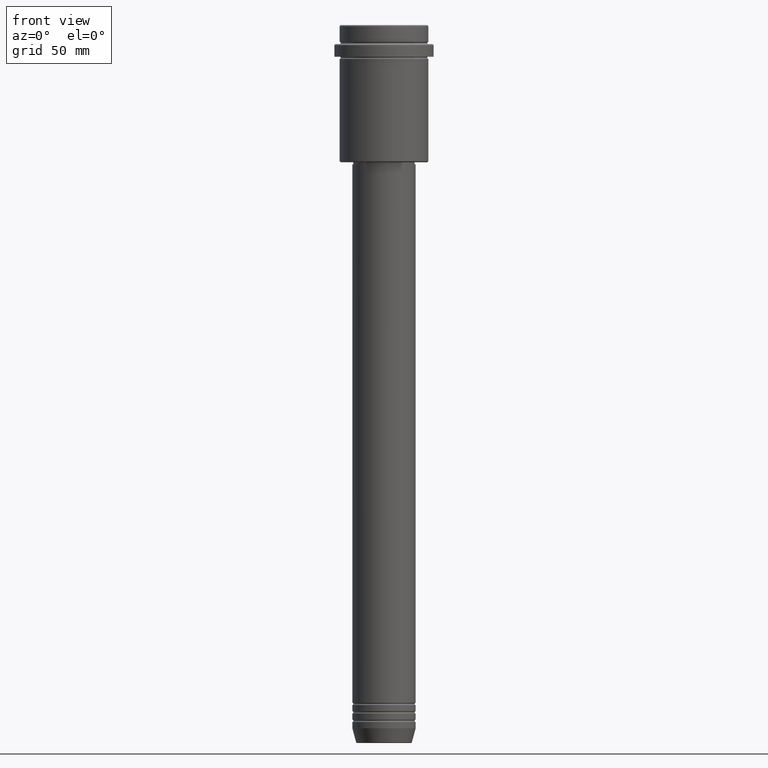
[diagram: clean part render]
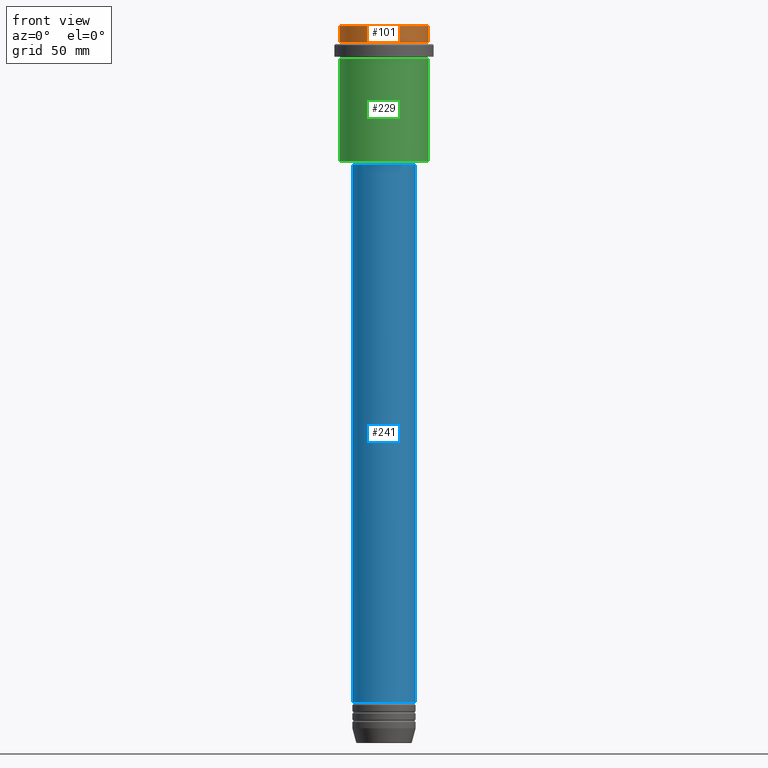
[diagram: same view with three faces highlighted in distinct colors, each labeled with its STEP entity id]
A machine part, front view with three faces highlighted in distinct colors.
Their STEP definitions:

[orange] entity #101 — the highlighted cylindrical surface (partial cylindrical patch) has radius 21 mm, axis along (-0, -0, 1).
#21 = EDGE_CURVE ( 'NONE', #23, #1118, #616, .T. ) ;
#23 = VERTEX_POINT ( 'NONE', #878 ) ;
#24 = AXIS2_PLACEMENT_3D ( 'NONE', #521, #309, #530 ) ;
#65 = LINE ( 'NONE', #492, #1375 ) ;
#84 = VERTEX_POINT ( 'NONE', #676 ) ;
#101 = ADVANCED_FACE ( 'NONE', ( #445 ), #1357, .T. ) ;
#118 = DIRECTION ( 'NONE',  ( -0.000000000000000000, -0.000000000000000000, 1.000000000000000000 ) ) ;
#144 = CARTESIAN_POINT ( 'NONE',  ( 20.99999999999999645, 0.000000000000000000, 0.000000000000000000 ) ) ;
#146 = EDGE_LOOP ( 'NONE', ( #1092, #606, #298, #656 ) ) ;
#200 = CIRCLE ( 'NONE', #1232, 20.99999999999999645 ) ;
#239 = AXIS2_PLACEMENT_3D ( 'NONE', #243, #118, #1128 ) ;
#243 = CARTESIAN_POINT ( 'NONE',  ( 0.000000000000000000, 0.000000000000000000, 0.000000000000000000 ) ) ;
#277 = CARTESIAN_POINT ( 'NONE',  ( 20.99999999999999645, 0.000000000000000000, -7.999999999999998224 ) ) ;
#298 = ORIENTED_EDGE ( 'NONE', *, *, #1071, .T. ) ;
#309 = DIRECTION ( 'NONE',  ( 0.000000000000000000, 0.000000000000000000, -1.000000000000000000 ) ) ;
#384 = EDGE_CURVE ( 'NONE', #84, #1118, #65, .T. ) ;
#406 = DIRECTION ( 'NONE',  ( -0.000000000000000000, -0.000000000000000000, 1.000000000000000000 ) ) ;
#445 = FACE_OUTER_BOUND ( 'NONE', #146, .T. ) ;
#465 = EDGE_CURVE ( 'NONE', #84, #652, #200, .T. ) ;
#492 = CARTESIAN_POINT ( 'NONE',  ( -20.99999999999999645, 2.571758278209441267E-15, 0.000000000000000000 ) ) ;
#521 = CARTESIAN_POINT ( 'NONE',  ( 0.000000000000000000, 0.000000000000000000, -0.5000000000000628386 ) ) ;
#530 = DIRECTION ( 'NONE',  ( 1.000000000000000000, 0.000000000000000000, 0.000000000000000000 ) ) ;
#606 = ORIENTED_EDGE ( 'NONE', *, *, #465, .T. ) ;
#616 = CIRCLE ( 'NONE', #24, 20.99999999999999645 ) ;
#652 = VERTEX_POINT ( 'NONE', #277 ) ;
#656 = ORIENTED_EDGE ( 'NONE', *, *, #21, .T. ) ;
#676 = CARTESIAN_POINT ( 'NONE',  ( -20.99999999999999645, 2.571758278209441267E-15, -7.999999999999998224 ) ) ;
#725 = LINE ( 'NONE', #144, #1333 ) ;
#837 = DIRECTION ( 'NONE',  ( 1.000000000000000000, 0.000000000000000000, 0.000000000000000000 ) ) ;
#861 = CARTESIAN_POINT ( 'NONE',  ( -20.99999999999999645, 2.571758278209441267E-15, -0.5000000000000628386 ) ) ;
#878 = CARTESIAN_POINT ( 'NONE',  ( 20.99999999999999645, 0.000000000000000000, -0.5000000000000628386 ) ) ;
#1045 = DIRECTION ( 'NONE',  ( -0.000000000000000000, -0.000000000000000000, 1.000000000000000000 ) ) ;
#1071 = EDGE_CURVE ( 'NONE', #652, #23, #725, .T. ) ;
#1092 = ORIENTED_EDGE ( 'NONE', *, *, #384, .F. ) ;
#1118 = VERTEX_POINT ( 'NONE', #861 ) ;
#1128 = DIRECTION ( 'NONE',  ( 1.000000000000000000, 0.000000000000000000, 0.000000000000000000 ) ) ;
#1156 = DIRECTION ( 'NONE',  ( -0.000000000000000000, -0.000000000000000000, 1.000000000000000000 ) ) ;
#1232 = AXIS2_PLACEMENT_3D ( 'NONE', #1396, #406, #837 ) ;
#1333 = VECTOR ( 'NONE', #1045, 1000.000000000000000 ) ;
#1357 = CYLINDRICAL_SURFACE ( 'NONE', #239, 20.99999999999999645 ) ;
#1375 = VECTOR ( 'NONE', #1156, 1000.000000000000000 ) ;
#1396 = CARTESIAN_POINT ( 'NONE',  ( 0.000000000000000000, 0.000000000000000000, -7.999999999999998224 ) ) ;

[blue] entity #241 — the highlighted cylindrical surface (edge-blend (fillet) strip) has radius 15 mm, axis along (-0, -0, 1).
#91 = DIRECTION ( 'NONE',  ( -0.000000000000000000, -0.000000000000000000, 1.000000000000000000 ) ) ;
#110 = CIRCLE ( 'NONE', #681, 15.00000000000000000 ) ;
#121 = EDGE_CURVE ( 'NONE', #1095, #216, #110, .T. ) ;
#130 = DIRECTION ( 'NONE',  ( -0.000000000000000000, -0.000000000000000000, 1.000000000000000000 ) ) ;
#165 = CARTESIAN_POINT ( 'NONE',  ( 0.000000000000000000, 0.000000000000000000, 0.000000000000000000 ) ) ;
#210 = DIRECTION ( 'NONE',  ( -0.000000000000000000, -0.000000000000000000, 1.000000000000000000 ) ) ;
#216 = VERTEX_POINT ( 'NONE', #1018 ) ;
#241 = ADVANCED_FACE ( 'NONE', ( #1027 ), #921, .T. ) ;
#249 = CIRCLE ( 'NONE', #986, 15.00000000000000000 ) ;
#303 = LINE ( 'NONE', #1088, #916 ) ;
#486 = DIRECTION ( 'NONE',  ( 1.000000000000000000, 0.000000000000000000, 0.000000000000000000 ) ) ;
#496 = CARTESIAN_POINT ( 'NONE',  ( 15.00000000000000000, 0.000000000000000000, -65.99999999999991473 ) ) ;
#523 = AXIS2_PLACEMENT_3D ( 'NONE', #165, #597, #486 ) ;
#524 = VECTOR ( 'NONE', #709, 1000.000000000000000 ) ;
#540 = VERTEX_POINT ( 'NONE', #730 ) ;
#597 = DIRECTION ( 'NONE',  ( -0.000000000000000000, -0.000000000000000000, 1.000000000000000000 ) ) ;
#629 = EDGE_CURVE ( 'NONE', #216, #1031, #1276, .T. ) ;
#681 = AXIS2_PLACEMENT_3D ( 'NONE', #904, #130, #899 ) ;
#694 = ORIENTED_EDGE ( 'NONE', *, *, #121, .T. ) ;
#709 = DIRECTION ( 'NONE',  ( -0.000000000000000000, -0.000000000000000000, 1.000000000000000000 ) ) ;
#722 = ORIENTED_EDGE ( 'NONE', *, *, #1131, .F. ) ;
#730 = CARTESIAN_POINT ( 'NONE',  ( -15.00000000000000000, 1.836970198721029589E-15, -65.99999999999991473 ) ) ;
#815 = CARTESIAN_POINT ( 'NONE',  ( 15.00000000000000000, 0.000000000000000000, 0.000000000000000000 ) ) ;
#899 = DIRECTION ( 'NONE',  ( 1.000000000000000000, 0.000000000000000000, 0.000000000000000000 ) ) ;
#904 = CARTESIAN_POINT ( 'NONE',  ( 0.000000000000000000, 0.000000000000000000, -320.9999999999998863 ) ) ;
#916 = VECTOR ( 'NONE', #91, 1000.000000000000000 ) ;
#918 = ORIENTED_EDGE ( 'NONE', *, *, #1180, .F. ) ;
#921 = CYLINDRICAL_SURFACE ( 'NONE', #523, 15.00000000000000000 ) ;
#927 = CARTESIAN_POINT ( 'NONE',  ( -15.00000000000000000, 1.836970198721029589E-15, -320.9999999999998863 ) ) ;
#950 = DIRECTION ( 'NONE',  ( 1.000000000000000000, 0.000000000000000000, 0.000000000000000000 ) ) ;
#978 = CARTESIAN_POINT ( 'NONE',  ( 0.000000000000000000, 0.000000000000000000, -65.99999999999991473 ) ) ;
#986 = AXIS2_PLACEMENT_3D ( 'NONE', #978, #210, #950 ) ;
#1018 = CARTESIAN_POINT ( 'NONE',  ( 15.00000000000000000, 0.000000000000000000, -320.9999999999998863 ) ) ;
#1021 = ORIENTED_EDGE ( 'NONE', *, *, #629, .T. ) ;
#1027 = FACE_OUTER_BOUND ( 'NONE', #1169, .T. ) ;
#1031 = VERTEX_POINT ( 'NONE', #496 ) ;
#1088 = CARTESIAN_POINT ( 'NONE',  ( -15.00000000000000000, 1.836970198721029589E-15, 0.000000000000000000 ) ) ;
#1095 = VERTEX_POINT ( 'NONE', #927 ) ;
#1131 = EDGE_CURVE ( 'NONE', #540, #1031, #249, .T. ) ;
#1169 = EDGE_LOOP ( 'NONE', ( #918, #694, #1021, #722 ) ) ;
#1180 = EDGE_CURVE ( 'NONE', #1095, #540, #303, .T. ) ;
#1276 = LINE ( 'NONE', #815, #524 ) ;

[green] entity #229 — the highlighted cylindrical surface (partial cylindrical patch) has radius 21 mm, axis along (-0, -0, 1).
#49 = CARTESIAN_POINT ( 'NONE',  ( -20.99999999999999645, 2.571758278209441267E-15, -64.49999999999992895 ) ) ;
#90 = AXIS2_PLACEMENT_3D ( 'NONE', #1257, #402, #257 ) ;
#109 = EDGE_CURVE ( 'NONE', #1015, #173, #1114, .T. ) ;
#147 = ORIENTED_EDGE ( 'NONE', *, *, #251, .F. ) ;
#173 = VERTEX_POINT ( 'NONE', #579 ) ;
#229 = ADVANCED_FACE ( 'NONE', ( #816 ), #481, .T. ) ;
#231 = DIRECTION ( 'NONE',  ( -0.000000000000000000, -0.000000000000000000, 1.000000000000000000 ) ) ;
#251 = EDGE_CURVE ( 'NONE', #173, #1331, #335, .T. ) ;
#257 = DIRECTION ( 'NONE',  ( 1.000000000000000000, 0.000000000000000000, 0.000000000000000000 ) ) ;
#273 = AXIS2_PLACEMENT_3D ( 'NONE', #776, #231, #1106 ) ;
#333 = ORIENTED_EDGE ( 'NONE', *, *, #1398, .T. ) ;
#335 = CIRCLE ( 'NONE', #1140, 20.99999999999999645 ) ;
#342 = EDGE_LOOP ( 'NONE', ( #1315, #333, #667, #147 ) ) ;
#366 = CARTESIAN_POINT ( 'NONE',  ( -20.99999999999999645, 2.571758278209441267E-15, 0.000000000000000000 ) ) ;
#368 = CARTESIAN_POINT ( 'NONE',  ( 20.99999999999999645, 0.000000000000000000, 0.000000000000000000 ) ) ;
#388 = CIRCLE ( 'NONE', #273, 20.99999999999999645 ) ;
#402 = DIRECTION ( 'NONE',  ( -0.000000000000000000, -0.000000000000000000, 1.000000000000000000 ) ) ;
#411 = VERTEX_POINT ( 'NONE', #1288 ) ;
#462 = DIRECTION ( 'NONE',  ( -0.000000000000000000, -0.000000000000000000, 1.000000000000000000 ) ) ;
#481 = CYLINDRICAL_SURFACE ( 'NONE', #90, 20.99999999999999645 ) ;
#493 = VECTOR ( 'NONE', #462, 1000.000000000000000 ) ;
#567 = CARTESIAN_POINT ( 'NONE',  ( 20.99999999999999645, 0.000000000000000000, -16.00000000000000355 ) ) ;
#579 = CARTESIAN_POINT ( 'NONE',  ( -20.99999999999999645, 2.571758278209441267E-15, -16.00000000000000355 ) ) ;
#667 = ORIENTED_EDGE ( 'NONE', *, *, #992, .T. ) ;
#776 = CARTESIAN_POINT ( 'NONE',  ( 0.000000000000000000, 0.000000000000000000, -64.49999999999992895 ) ) ;
#816 = FACE_OUTER_BOUND ( 'NONE', #342, .T. ) ;
#992 = EDGE_CURVE ( 'NONE', #411, #1331, #1030, .T. ) ;
#1015 = VERTEX_POINT ( 'NONE', #49 ) ;
#1029 = VECTOR ( 'NONE', #1259, 1000.000000000000000 ) ;
#1030 = LINE ( 'NONE', #368, #1029 ) ;
#1106 = DIRECTION ( 'NONE',  ( -1.000000000000000000, 0.000000000000000000, 0.000000000000000000 ) ) ;
#1114 = LINE ( 'NONE', #366, #493 ) ;
#1140 = AXIS2_PLACEMENT_3D ( 'NONE', #1391, #1249, #1364 ) ;
#1249 = DIRECTION ( 'NONE',  ( -0.000000000000000000, -0.000000000000000000, 1.000000000000000000 ) ) ;
#1257 = CARTESIAN_POINT ( 'NONE',  ( 0.000000000000000000, 0.000000000000000000, 0.000000000000000000 ) ) ;
#1259 = DIRECTION ( 'NONE',  ( -0.000000000000000000, -0.000000000000000000, 1.000000000000000000 ) ) ;
#1288 = CARTESIAN_POINT ( 'NONE',  ( 20.99999999999999645, 0.000000000000000000, -64.49999999999992895 ) ) ;
#1315 = ORIENTED_EDGE ( 'NONE', *, *, #109, .F. ) ;
#1331 = VERTEX_POINT ( 'NONE', #567 ) ;
#1364 = DIRECTION ( 'NONE',  ( 1.000000000000000000, 0.000000000000000000, 0.000000000000000000 ) ) ;
#1391 = CARTESIAN_POINT ( 'NONE',  ( 0.000000000000000000, 0.000000000000000000, -16.00000000000000355 ) ) ;
#1398 = EDGE_CURVE ( 'NONE', #1015, #411, #388, .T. ) ;